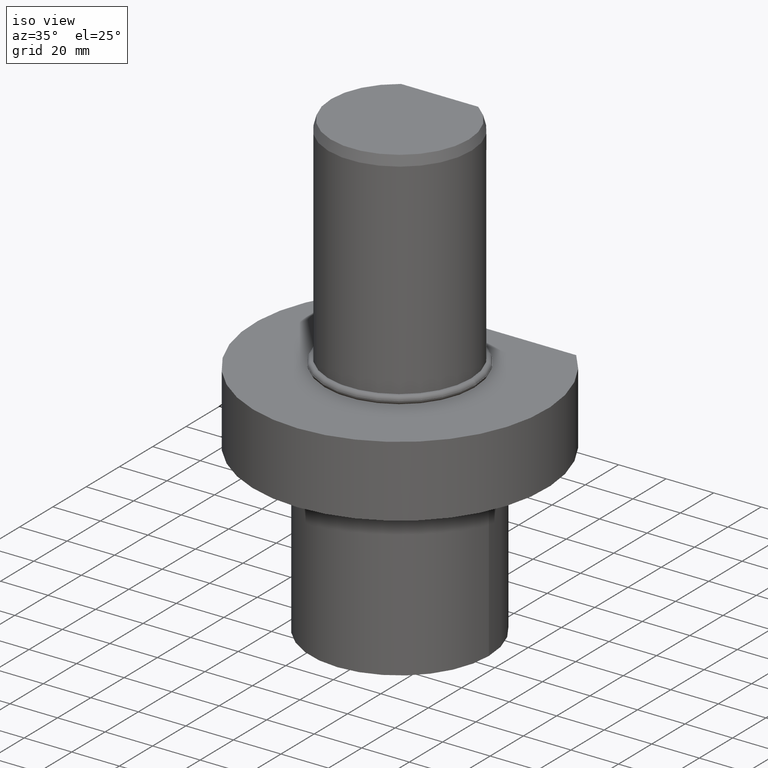
[diagram: clean part render]
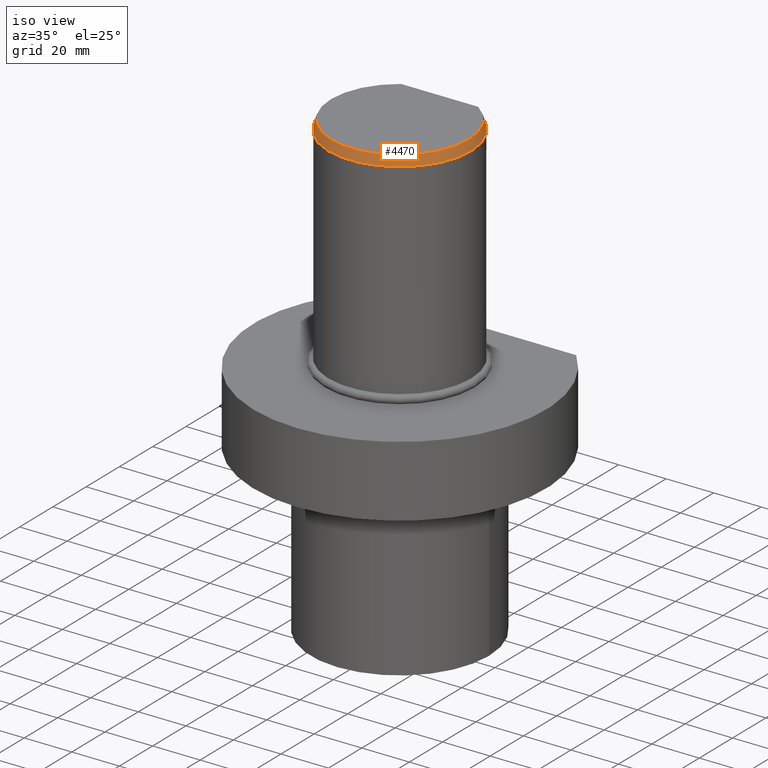
[diagram: same view with one face highlighted and labeled with its STEP entity id]
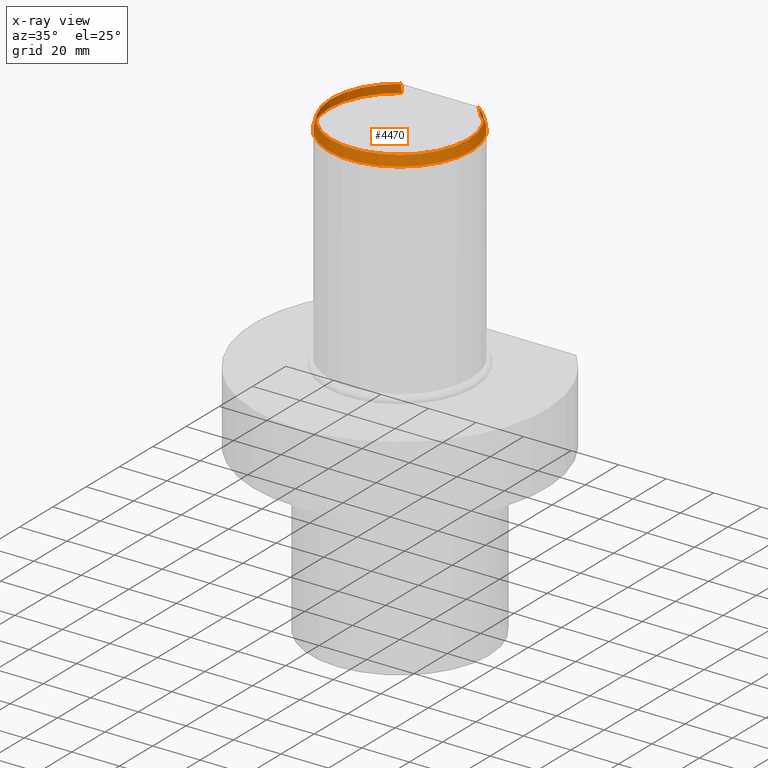
[diagram: x-ray of the same camera — body ghosted, the highlighted face saturated]
A machine part, iso view. The second image highlights one B-rep face of the part: STEP entity #4470.
The next image is the same camera in x-ray: the body ghosted, the highlighted face saturated — about 0% of this face is hidden behind the body in this view.
In plain terms, the highlighted conical surface has half-angle 15 deg.
Its self-contained STEP definition (entity closure, byte-faithful):
#6 = ORIENTED_EDGE ( 'NONE', *, *, #13718, .T. ) ;
#48 = VERTEX_POINT ( 'NONE', #2950 ) ;
#186 = ORIENTED_EDGE ( 'NONE', *, *, #11970, .T. ) ;
#471 = CARTESIAN_POINT ( 'NONE',  ( 4.174438572590589854E-14, 1.151167991198510077E-14, 94.00000000000000000 ) ) ;
#955 = CARTESIAN_POINT ( 'NONE',  ( -16.25675343673369966, 23.92820323027550344, 94.00000000000000000 ) ) ;
#964 = ORIENTED_EDGE ( 'NONE', *, *, #4891, .F. ) ;
#1539 = CARTESIAN_POINT ( 'NONE',  ( 16.58312395177700083, 25.00000000000000000, 90.00000000000000000 ) ) ;
#2440 = VERTEX_POINT ( 'NONE', #5860 ) ;
#2499 = CARTESIAN_POINT ( 'NONE',  ( -16.25675343673369966, 23.92820323027550344, 94.00000000000000000 ) ) ;
#2512 = CARTESIAN_POINT ( 'NONE',  ( 4.085620730620579855E-14, 1.126675055215559892E-14, 92.00000000000000000 ) ) ;
#2950 = CARTESIAN_POINT ( 'NONE',  ( 16.58312395177700083, 25.00000000000000000, 90.00000000000000000 ) ) ;
#2999 = AXIS2_PLACEMENT_3D ( 'NONE', #3708, #13669, #3794 ) ;
#3591 = CARTESIAN_POINT ( 'NONE',  ( -16.58312395177690135, 25.00000000000000000, 90.00000000000000000 ) ) ;
#3602 = DIRECTION ( 'NONE',  ( -4.440892098500630106E-16, -1.224646799147350002E-16, -1.000000000000000000 ) ) ;
#3708 = CARTESIAN_POINT ( 'NONE',  ( 3.996802888650559759E-14, 1.102182119232619962E-14, 90.00000000000000000 ) ) ;
#3794 = DIRECTION ( 'NONE',  ( -1.000000000000000000, 4.440892098500630106E-16, 4.625929269271485914E-16 ) ) ;
#4470 = ADVANCED_FACE ( 'Defeature completata1_21', ( #6660 ), #13787, .T. ) ;
#4603 = ORIENTED_EDGE ( 'NONE', *, *, #9550, .F. ) ;
#4891 = EDGE_CURVE ( 'NONE', #8225, #48, #9583, .T. ) ;
#5631 = DIRECTION ( 'NONE',  ( -2.603921899779600418E-16, -1.000000000000000000, 0.000000000000000000 ) ) ;
#5860 = CARTESIAN_POINT ( 'NONE',  ( -16.58312395177690135, 25.00000000000000000, 90.00000000000000000 ) ) ;
#6660 = FACE_OUTER_BOUND ( 'NONE', #10611, .T. ) ;
#7238 = DIRECTION ( 'NONE',  ( -1.000000000000000000, 4.440892098500629120E-16, 4.797321042494035060E-16 ) ) ;
#7362 = DIRECTION ( 'NONE',  ( -4.440892098500630106E-16, -1.224646799147350002E-16, -1.000000000000000000 ) ) ;
#7574 = AXIS2_PLACEMENT_3D ( 'NONE', #2512, #3602, #5631 ) ;
#8079 = CIRCLE ( 'NONE', #2999, 30.00000000000000000 ) ;
#8150 = B_SPLINE_CURVE_WITH_KNOTS ( 'NONE', 2,
 ( #3591, #12363, #2499 ),
 .UNSPECIFIED., .F., .F.,
 ( 3, 3 ),
 ( 0.000000000000000000, 0.4153946153076609749 ),
 .UNSPECIFIED. ) ;
#8178 = CARTESIAN_POINT ( 'NONE',  ( 16.25675343673379913, 23.92820323027550344, 94.00000000000000000 ) ) ;
#8225 = VERTEX_POINT ( 'NONE', #8178 ) ;
#9438 = AXIS2_PLACEMENT_3D ( 'NONE', #471, #7362, #7238 ) ;
#9550 = EDGE_CURVE ( 'NONE', #2440, #11005, #8150, .T. ) ;
#9583 = B_SPLINE_CURVE_WITH_KNOTS ( 'NONE', 2,
 ( #12507, #11438, #1539 ),
 .UNSPECIFIED., .F., .F.,
 ( 3, 3 ),
 ( 0.000000000000000000, 0.4153946153076609749 ),
 .UNSPECIFIED. ) ;
#10611 = EDGE_LOOP ( 'NONE', ( #964, #186, #4603, #6 ) ) ;
#11005 = VERTEX_POINT ( 'NONE', #955 ) ;
#11438 = CARTESIAN_POINT ( 'NONE',  ( 16.41993869423560071, 24.45877572941819977, 92.01987647610060606 ) ) ;
#11483 = CIRCLE ( 'NONE', #9438, 28.92820323027549989 ) ;
#11970 = EDGE_CURVE ( 'NONE', #8225, #11005, #11483, .T. ) ;
#12363 = CARTESIAN_POINT ( 'NONE',  ( -16.41993869423550123, 24.45877572941819977, 92.01987647610060606 ) ) ;
#12507 = CARTESIAN_POINT ( 'NONE',  ( 16.25675343673379913, 23.92820323027550344, 94.00000000000000000 ) ) ;
#13669 = DIRECTION ( 'NONE',  ( 4.440892098500630106E-16, 1.224646799147350002E-16, 1.000000000000000000 ) ) ;
#13718 = EDGE_CURVE ( 'NONE', #2440, #48, #8079, .T. ) ;
#13787 = CONICAL_SURFACE ( 'NONE', #7574, 29.46410161513779968, 0.2617993877991492968 ) ;